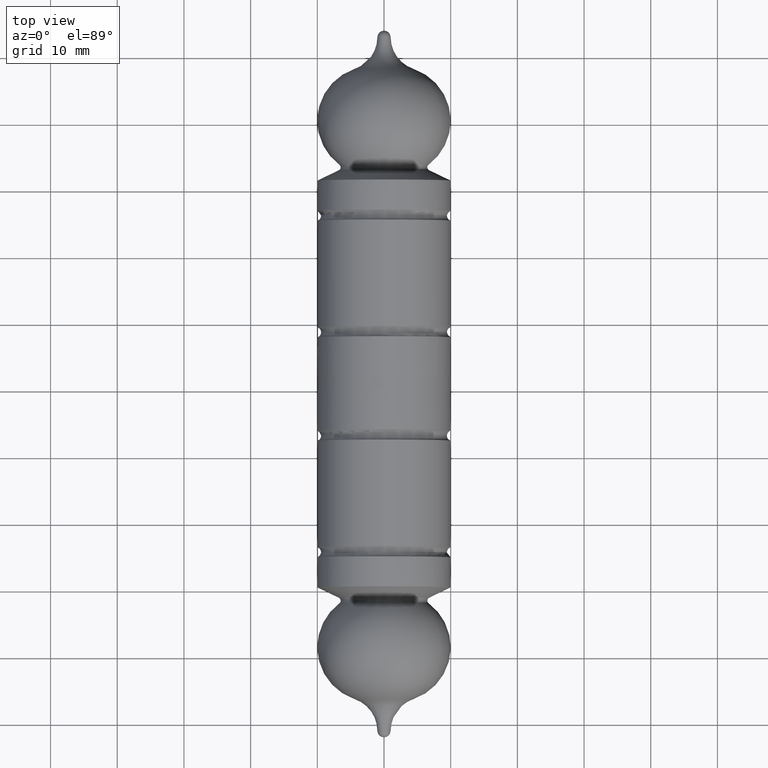
[diagram: clean part render]
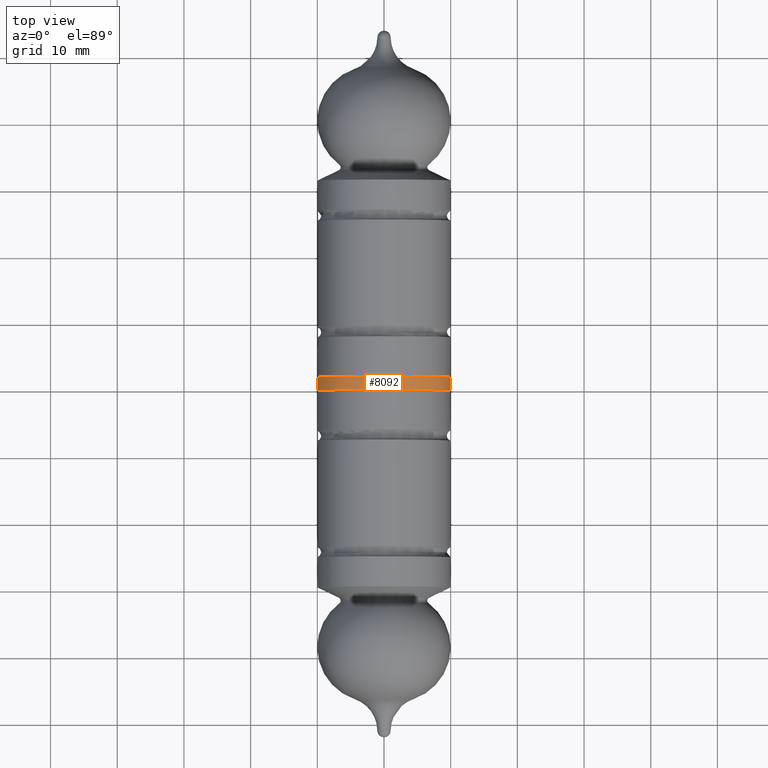
[diagram: same view with one face highlighted and labeled with its STEP entity id]
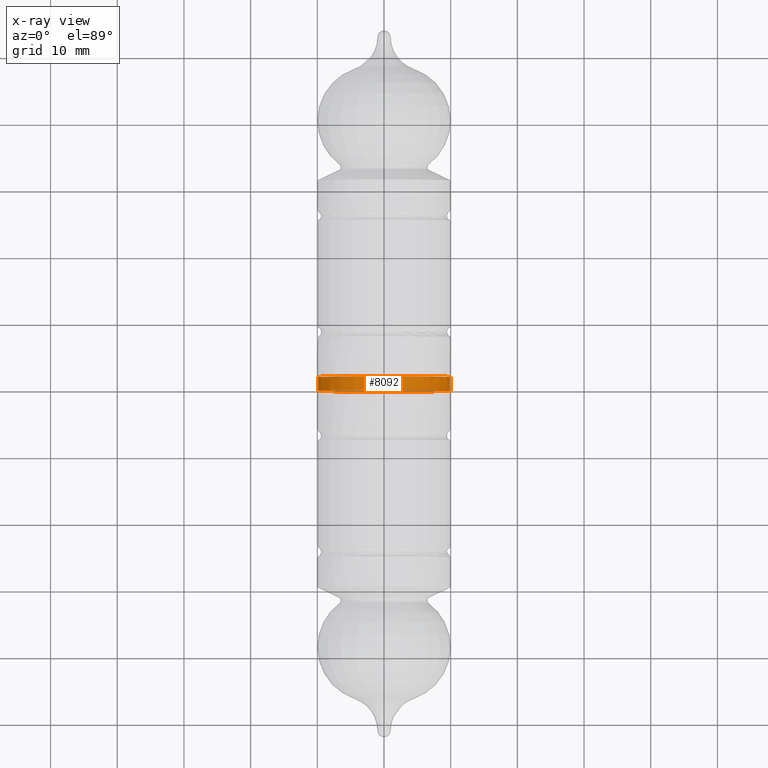
[diagram: x-ray of the same camera — body ghosted, the highlighted face saturated]
A machine part, top view. The second image highlights one B-rep face of the part: STEP entity #8092.
The next image is the same camera in x-ray: the body ghosted, the highlighted face saturated — about 10% of this face is hidden behind the body in this view.
In plain terms, the highlighted cylindrical surface (bore or boss wall) has radius 10 mm, axis along (-0, -1, -0).
Its self-contained STEP definition (entity closure, byte-faithful):
#559 = AXIS2_PLACEMENT_3D ( 'NONE', #10575, #11453, #5005 ) ;
#1442 = VERTEX_POINT ( 'NONE', #2980 ) ;
#1767 = DIRECTION ( 'NONE',  ( -0.000000000000000000, -1.000000000000000000, -0.000000000000000000 ) ) ;
#2598 = EDGE_CURVE ( 'NONE', #1442, #1442, #2651, .T. ) ;
#2651 = CIRCLE ( 'NONE', #4912, 10.00000000000000000 ) ;
#2980 = CARTESIAN_POINT ( 'NONE',  ( 0.000000000000000000, -1.000000000000000000, 10.00000000000000000 ) ) ;
#3026 = EDGE_LOOP ( 'NONE', ( #5017 ) ) ;
#3206 = CIRCLE ( 'NONE', #559, 10.00000000000000000 ) ;
#3411 = EDGE_CURVE ( 'NONE', #10414, #10414, #3206, .T. ) ;
#4547 = DIRECTION ( 'NONE',  ( 0.000000000000000000, 0.000000000000000000, -1.000000000000000000 ) ) ;
#4912 = AXIS2_PLACEMENT_3D ( 'NONE', #5200, #6010, #11634 ) ;
#5005 = DIRECTION ( 'NONE',  ( 0.000000000000000000, 0.000000000000000000, 1.000000000000000000 ) ) ;
#5017 = ORIENTED_EDGE ( 'NONE', *, *, #2598, .T. ) ;
#5200 = CARTESIAN_POINT ( 'NONE',  ( 0.000000000000000000, -1.000000000000000000, 0.000000000000000000 ) ) ;
#5263 = EDGE_LOOP ( 'NONE', ( #10884 ) ) ;
#6010 = DIRECTION ( 'NONE',  ( 0.000000000000000000, 1.000000000000000000, 0.000000000000000000 ) ) ;
#6332 = CYLINDRICAL_SURFACE ( 'NONE', #9617, 10.00000000000000000 ) ;
#7363 = CARTESIAN_POINT ( 'NONE',  ( 0.000000000000000000, 1.000000000000000000, 0.000000000000000000 ) ) ;
#7891 = FACE_OUTER_BOUND ( 'NONE', #5263, .T. ) ;
#8092 = ADVANCED_FACE ( 'NONE', ( #7891, #10659 ), #6332, .T. ) ;
#9299 = CARTESIAN_POINT ( 'NONE',  ( 0.000000000000000000, 1.000000000000000000, 10.00000000000000000 ) ) ;
#9617 = AXIS2_PLACEMENT_3D ( 'NONE', #7363, #1767, #4547 ) ;
#10414 = VERTEX_POINT ( 'NONE', #9299 ) ;
#10575 = CARTESIAN_POINT ( 'NONE',  ( 0.000000000000000000, 1.000000000000000000, 0.000000000000000000 ) ) ;
#10659 = FACE_OUTER_BOUND ( 'NONE', #3026, .T. ) ;
#10884 = ORIENTED_EDGE ( 'NONE', *, *, #3411, .F. ) ;
#11453 = DIRECTION ( 'NONE',  ( 0.000000000000000000, 1.000000000000000000, 0.000000000000000000 ) ) ;
#11634 = DIRECTION ( 'NONE',  ( 0.000000000000000000, 0.000000000000000000, 1.000000000000000000 ) ) ;